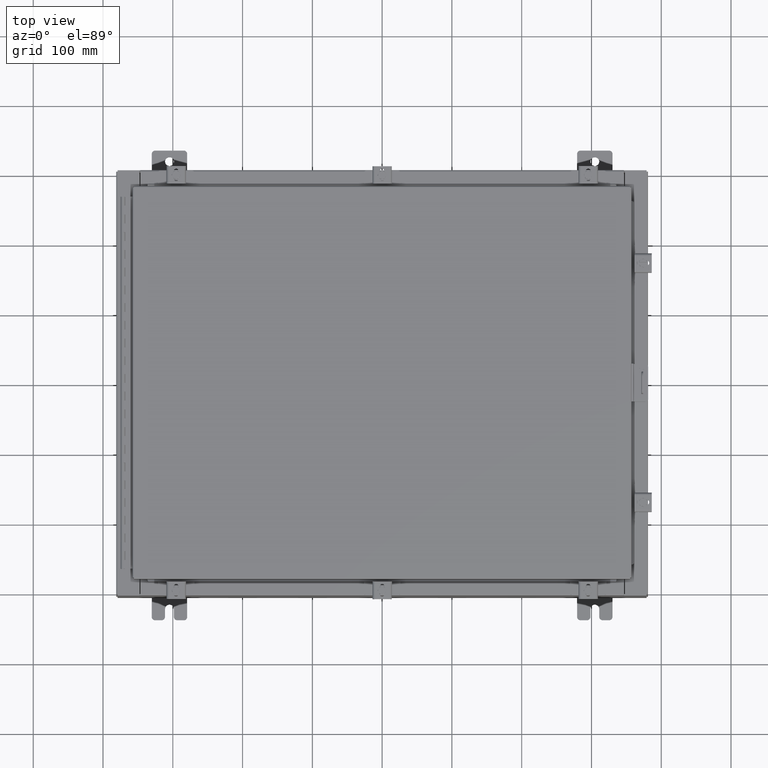
[diagram: clean part render]
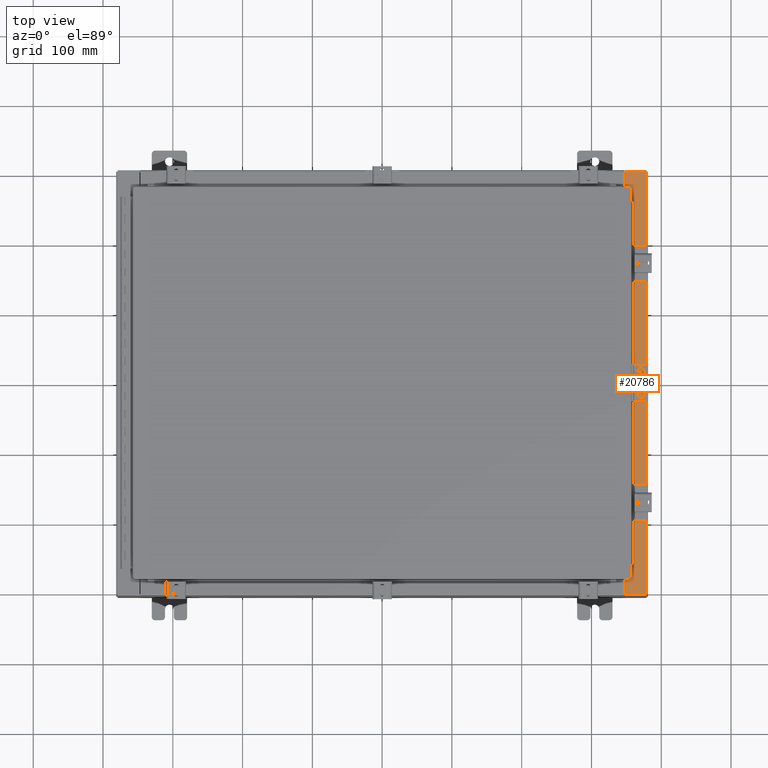
[diagram: same view with one face highlighted and labeled with its STEP entity id]
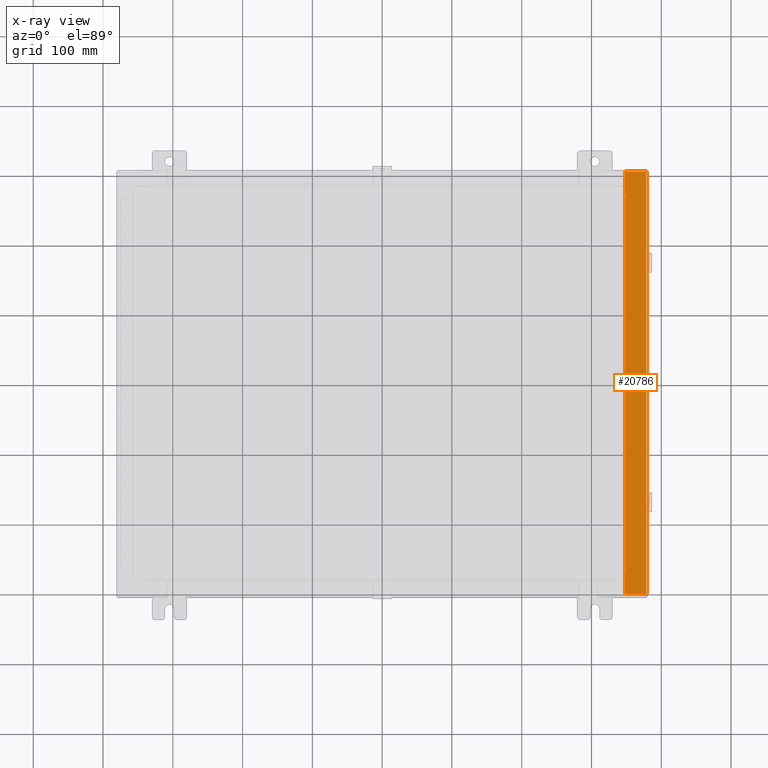
[diagram: x-ray of the same camera — body ghosted, the highlighted face saturated]
A machine part, top view. The second image highlights one B-rep face of the part: STEP entity #20786.
The next image is the same camera in x-ray: the body ghosted, the highlighted face saturated — about 0% of this face is hidden behind the body in this view.
In plain terms, the highlighted planar face has unit normal (-0, -0, -1).
Its self-contained STEP definition (entity closure, byte-faithful):
#169 = VERTEX_POINT ( 'NONE', #8701 ) ;
#247 = LINE ( 'NONE', #18987, #20260 ) ;
#715 = LINE ( 'NONE', #10542, #13286 ) ;
#1541 = VECTOR ( 'NONE', #13330, 39.37007874015748100 ) ;
#1893 = ORIENTED_EDGE ( 'NONE', *, *, #28106, .F. ) ;
#2102 = VERTEX_POINT ( 'NONE', #8615 ) ;
#2357 = EDGE_CURVE ( 'NONE', #20370, #2102, #13041, .T. ) ;
#2475 = CARTESIAN_POINT ( 'NONE',  ( 14.91230000000003000, 11.92529999999999600, 7.925300000000000000 ) ) ;
#2524 = ORIENTED_EDGE ( 'NONE', *, *, #31002, .F. ) ;
#2801 = DIRECTION ( 'NONE',  ( -4.379057701015054300E-047, -1.000000000000000000, 4.581600452255731000E-017 ) ) ;
#3240 = DIRECTION ( 'NONE',  ( 6.241167087353086200E-015, 4.581600452255730400E-017, 1.000000000000000000 ) ) ;
#3501 = EDGE_CURVE ( 'NONE', #14499, #29740, #12574, .T. ) ;
#4003 = DIRECTION ( 'NONE',  ( -1.000000000000000000, 0.0000000000000000000, 0.0000000000000000000 ) ) ;
#4107 = DIRECTION ( 'NONE',  ( 6.241167087353086200E-015, 4.581600452255730400E-017, 1.000000000000000000 ) ) ;
#4235 = DIRECTION ( 'NONE',  ( -1.000000000000000000, 0.0000000000000000000, -2.170286390200049500E-014 ) ) ;
#4950 = EDGE_CURVE ( 'NONE', #27989, #29816, #715, .T. ) ;
#4985 = VERTEX_POINT ( 'NONE', #31974 ) ;
#5461 = CARTESIAN_POINT ( 'NONE',  ( 4.972393517341157600E-014, -11.92530000000000400, 7.925300000000095000 ) ) ;
#5572 = DIRECTION ( 'NONE',  ( 1.000000000000000000, 0.0000000000000000000, -6.241167087353087800E-015 ) ) ;
#5623 = EDGE_CURVE ( 'NONE', #4985, #32484, #22660, .T. ) ;
#5767 = CARTESIAN_POINT ( 'NONE',  ( 4.972393517341157600E-014, 11.92529999999999600, 7.925300000000094200 ) ) ;
#6139 = DIRECTION ( 'NONE',  ( 1.000000000000000000, 0.0000000000000000000, 2.170286390200049500E-014 ) ) ;
#6696 = VECTOR ( 'NONE', #22683, 39.37007874015748100 ) ;
#7421 = LINE ( 'NONE', #5767, #1541 ) ;
#7549 = EDGE_CURVE ( 'NONE', #2102, #29740, #8988, .T. ) ;
#7576 = ORIENTED_EDGE ( 'NONE', *, *, #7549, .T. ) ;
#7860 = VECTOR ( 'NONE', #25196, 39.37007874015748100 ) ;
#8288 = EDGE_LOOP ( 'NONE', ( #1893, #28049, #7576, #12840, #25545, #27312, #14453, #32191, #24857, #28713, #2524, #31298 ) ) ;
#8615 = CARTESIAN_POINT ( 'NONE',  ( 13.69970000000003000, -11.92530000000000400, 7.925300000000009800 ) ) ;
#8701 = CARTESIAN_POINT ( 'NONE',  ( 13.75005000000002800, -10.59375000000000200, 7.925300000000007100 ) ) ;
#8988 = LINE ( 'NONE', #5461, #20762 ) ;
#9396 = CARTESIAN_POINT ( 'NONE',  ( 13.75005000000002800, -10.63110000000000200, 7.925300000000008900 ) ) ;
#9804 = DIRECTION ( 'NONE',  ( -6.241167087353086200E-015, -4.581600452255731000E-017, -1.000000000000000000 ) ) ;
#10390 = CARTESIAN_POINT ( 'NONE',  ( 13.71270000000003000, -10.59375000000000200, 7.925300000000011600 ) ) ;
#10542 = CARTESIAN_POINT ( 'NONE',  ( 13.75005000000002800, 10.63109999999999300, 7.925300000000011600 ) ) ;
#10806 = EDGE_CURVE ( 'NONE', #28285, #169, #16192, .T. ) ;
#10921 = VECTOR ( 'NONE', #15689, 39.37007874015748100 ) ;
#11453 = VECTOR ( 'NONE', #2801, 39.37007874015748100 ) ;
#11469 = AXIS2_PLACEMENT_3D ( 'NONE', #24833, #9804, #27410 ) ;
#11575 = AXIS2_PLACEMENT_3D ( 'NONE', #19087, #4107, #21654 ) ;
#12574 = LINE ( 'NONE', #24299, #6696 ) ;
#12840 = ORIENTED_EDGE ( 'NONE', *, *, #3501, .F. ) ;
#12978 = CARTESIAN_POINT ( 'NONE',  ( 13.69970000000003000, 3.631055806426237500E-016, 7.925300000000008900 ) ) ;
#13041 = LINE ( 'NONE', #12978, #11453 ) ;
#13061 = CARTESIAN_POINT ( 'NONE',  ( 14.91230000000003000, -11.92530000000000400, 7.925300000000000900 ) ) ;
#13274 = CARTESIAN_POINT ( 'NONE',  ( 13.75005000000002800, 10.63109999999999300, 7.925300000000007100 ) ) ;
#13286 = VECTOR ( 'NONE', #4235, 39.37007874015748100 ) ;
#13330 = DIRECTION ( 'NONE',  ( -1.000000000000000000, 0.0000000000000000000, 6.241167087353087800E-015 ) ) ;
#14453 = ORIENTED_EDGE ( 'NONE', *, *, #4950, .F. ) ;
#14499 = VERTEX_POINT ( 'NONE', #2475 ) ;
#14684 = EDGE_CURVE ( 'NONE', #14499, #28055, #7421, .T. ) ;
#15689 = DIRECTION ( 'NONE',  ( 1.000000000000000000, 0.0000000000000000000, 0.0000000000000000000 ) ) ;
#15957 = VECTOR ( 'NONE', #31779, 39.37007874015748100 ) ;
#16067 = CARTESIAN_POINT ( 'NONE',  ( 13.69970000000003000, -10.63110000000000200, 7.925300000000010700 ) ) ;
#16192 = CIRCLE ( 'NONE', #18921, 0.01867499999999949400 ) ;
#18225 = CARTESIAN_POINT ( 'NONE',  ( 13.75005000000002800, -10.61242500000000200, 7.925300000000011600 ) ) ;
#18707 = VECTOR ( 'NONE', #6139, 39.37007874015748100 ) ;
#18921 = AXIS2_PLACEMENT_3D ( 'NONE', #18225, #3240, #20785 ) ;
#18987 = CARTESIAN_POINT ( 'NONE',  ( 13.75005000000002800, -10.59375000000000200, 7.925300000000011600 ) ) ;
#19087 = CARTESIAN_POINT ( 'NONE',  ( 13.75005000000002800, 10.61242499999999300, 7.925300000000011600 ) ) ;
#19495 = LINE ( 'NONE', #16067, #18707 ) ;
#19801 = VERTEX_POINT ( 'NONE', #19820 ) ;
#19820 = CARTESIAN_POINT ( 'NONE',  ( 13.75005000000002800, 10.59374999999999300, 7.925300000000007100 ) ) ;
#19922 = EDGE_CURVE ( 'NONE', #28055, #29816, #21202, .T. ) ;
#20153 = CARTESIAN_POINT ( 'NONE',  ( 13.69970000000003000, 3.631055806426237500E-016, 7.925300000000008900 ) ) ;
#20260 = VECTOR ( 'NONE', #4003, 39.37007874015748100 ) ;
#20370 = VERTEX_POINT ( 'NONE', #21797 ) ;
#20762 = VECTOR ( 'NONE', #5572, 39.37007874015748100 ) ;
#20785 = DIRECTION ( 'NONE',  ( 1.000000000000000000, 0.0000000000000000000, 0.0000000000000000000 ) ) ;
#20786 = ADVANCED_FACE ( 'NONE', ( #30649 ), #22332, .F. ) ;
#21202 = LINE ( 'NONE', #20153, #7860 ) ;
#21654 = DIRECTION ( 'NONE',  ( 1.000000000000000000, 0.0000000000000000000, 0.0000000000000000000 ) ) ;
#21797 = CARTESIAN_POINT ( 'NONE',  ( 13.69970000000003000, -10.63110000000000200, 7.925300000000008900 ) ) ;
#22332 = PLANE ( 'NONE',  #11469 ) ;
#22660 = LINE ( 'NONE', #10390, #15957 ) ;
#22683 = DIRECTION ( 'NONE',  ( -9.163200904511462000E-017, -1.000000000000000000, 4.581600452255787700E-017 ) ) ;
#24295 = CARTESIAN_POINT ( 'NONE',  ( 13.71270000000003000, 10.59374999999999300, 7.925300000000011600 ) ) ;
#24299 = CARTESIAN_POINT ( 'NONE',  ( 14.91230000000002900, -11.92530000000000400, 7.925300000000000900 ) ) ;
#24833 = CARTESIAN_POINT ( 'NONE',  ( 4.972393517341157600E-014, 3.631055806426276900E-016, 7.925300000000094200 ) ) ;
#24857 = ORIENTED_EDGE ( 'NONE', *, *, #27433, .F. ) ;
#24983 = EDGE_CURVE ( 'NONE', #19801, #27989, #29127, .T. ) ;
#25196 = DIRECTION ( 'NONE',  ( -4.379057701015054300E-047, -1.000000000000000000, 4.581600452255731000E-017 ) ) ;
#25545 = ORIENTED_EDGE ( 'NONE', *, *, #14684, .T. ) ;
#25901 = CARTESIAN_POINT ( 'NONE',  ( 13.69970000000003000, 10.63109999999999500, 7.925300000000008900 ) ) ;
#27312 = ORIENTED_EDGE ( 'NONE', *, *, #19922, .T. ) ;
#27410 = DIRECTION ( 'NONE',  ( -1.000000000000000000, 0.0000000000000000000, 6.241167087353086200E-015 ) ) ;
#27433 = EDGE_CURVE ( 'NONE', #32484, #19801, #31767, .T. ) ;
#27989 = VERTEX_POINT ( 'NONE', #13274 ) ;
#28049 = ORIENTED_EDGE ( 'NONE', *, *, #2357, .T. ) ;
#28055 = VERTEX_POINT ( 'NONE', #31043 ) ;
#28106 = EDGE_CURVE ( 'NONE', #20370, #28285, #19495, .T. ) ;
#28285 = VERTEX_POINT ( 'NONE', #9396 ) ;
#28713 = ORIENTED_EDGE ( 'NONE', *, *, #5623, .F. ) ;
#29127 = CIRCLE ( 'NONE', #11575, 0.01867499999999949400 ) ;
#29740 = VERTEX_POINT ( 'NONE', #13061 ) ;
#29816 = VERTEX_POINT ( 'NONE', #25901 ) ;
#30649 = FACE_OUTER_BOUND ( 'NONE', #8288, .T. ) ;
#30879 = CARTESIAN_POINT ( 'NONE',  ( 13.71270000000003000, 10.59374999999999300, 7.925300000000011600 ) ) ;
#31002 = EDGE_CURVE ( 'NONE', #169, #4985, #247, .T. ) ;
#31043 = CARTESIAN_POINT ( 'NONE',  ( 13.69970000000003000, 11.92529999999999600, 7.925300000000008900 ) ) ;
#31298 = ORIENTED_EDGE ( 'NONE', *, *, #10806, .F. ) ;
#31767 = LINE ( 'NONE', #30879, #10921 ) ;
#31779 = DIRECTION ( 'NONE',  ( -0.0000000000000000000, 1.000000000000000000, -0.0000000000000000000 ) ) ;
#31974 = CARTESIAN_POINT ( 'NONE',  ( 13.71270000000003000, -10.59375000000000200, 7.925300000000011600 ) ) ;
#32191 = ORIENTED_EDGE ( 'NONE', *, *, #24983, .F. ) ;
#32484 = VERTEX_POINT ( 'NONE', #24295 ) ;